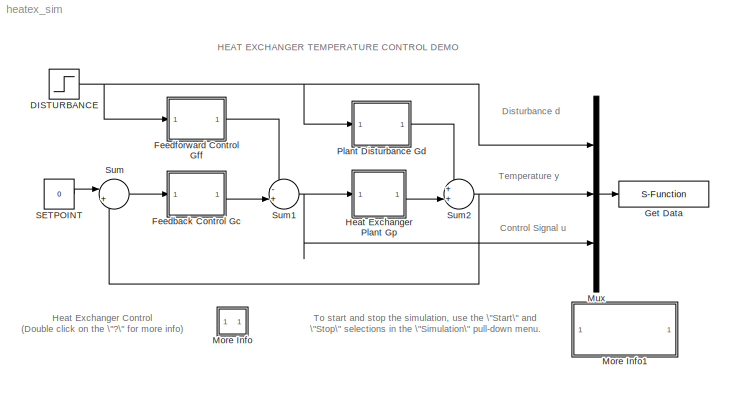
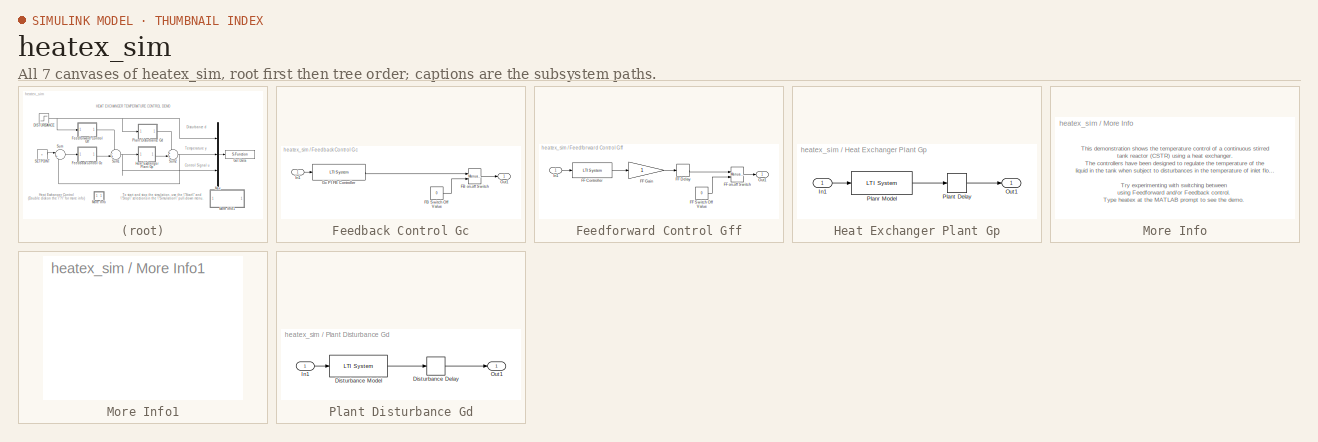
[diagram: thumbnail index - all 7 canvases of the model, root first then tree order]
MODEL heatex_sim
KIND model
CONFIG AbsTol = auto
CONFIG FixedStep = 2
CONFIG MaxStep = auto
CONFIG MinStep = auto
CONFIG RelTol = 1e-3
CONFIG Solver = ode4
CONFIG SolverMode = Auto
CONFIG StartFcn = heatex_clbk('Start')
CONFIG StartTime = 0.0
CONFIG StopFcn = heatex_clbk('Stop')
CONFIG StopTime = 200
BLOCK [Step] DISTURBANCE
  After = -1
  Before = 0
  SampleTime = 0
  Time = 20
  VectorParams1D = on
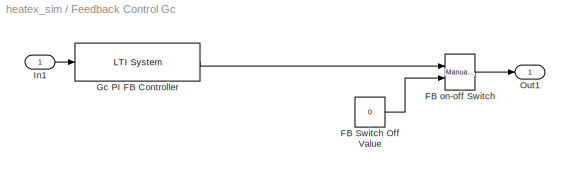
BLOCK [SubSystem] Feedback Control Gc
  Ports = [1, 1]
  RTWFcnNameOpts = Auto
  RTWFileNameOpts = Auto
  RTWSystemCode = Auto
  ShowPortLabels = on
  TreatAsAtomicUnit = off
BLOCK [Constant] Feedback Control Gc/FB Switch Off Value
  Value = 0
  VectorParams1D = on
BLOCK [Reference] Feedback Control Gc/FB on-off Switch  REF=simulink3/Nonlinear/Manual Switch
  Ports = [2, 1]
  SourceBlock = simulink3/Nonlinear/Manual Switch
  SourceType = Manual Switch
  action = 0
  sw = 1
BLOCK [Reference] Feedback Control Gc/Gc PI FB Controller  REF=cstblocks/LTI System
  IC = 0
  Ports = [1, 1]
  SourceBlock = cstblocks/LTI System
  SourceType = LTI Block
  sys = tf([30.31 1.23],[24.56 0])
BLOCK [Inport] Feedback Control Gc/In1
  Interpolate = on
  Port = 1
BLOCK [Outport] Feedback Control Gc/Out1
  InitialOutput = []
  OutputWhenDisabled = held
  Port = 1
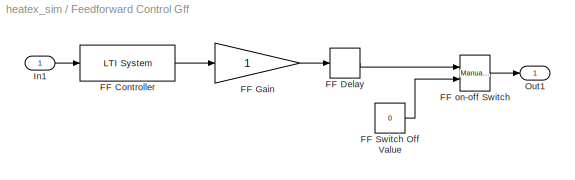
BLOCK [SubSystem] Feedforward Control Gff
  Ports = [1, 1]
  RTWFcnNameOpts = Auto
  RTWFileNameOpts = Auto
  RTWSystemCode = Auto
  ShowPortLabels = on
  TreatAsAtomicUnit = off
BLOCK [Reference] Feedforward Control Gff/FF Controller  REF=cstblocks/LTI System
  IC = 0
  Ports = [1, 1]
  SourceBlock = cstblocks/LTI System
  SourceType = LTI Block
  sys = tf([21.3 1],[25 1])
BLOCK [TransportDelay] Feedforward Control Gff/FF Delay
  BufferSize = 1024
  CloseFcn = disp('hello')
  DelayTime = 25.3
  InitialInput = 0
  PadeOrder = 0
BLOCK [Gain] Feedforward Control Gff/FF Gain
  CloseFcn = disp('hello')
  Gain = 1
  Multiplication = Element-wise(K.*u)
  SaturateOnIntegerOverflow = on
BLOCK [Constant] Feedforward Control Gff/FF Switch Off Value
  Value = 0
  VectorParams1D = on
BLOCK [Reference] Feedforward Control Gff/FF on-off Switch  REF=simulink3/Nonlinear/Manual Switch
  Ports = [2, 1]
  SourceBlock = simulink3/Nonlinear/Manual Switch
  SourceType = Manual Switch
  action = 0
  sw = 0
BLOCK [Inport] Feedforward Control Gff/In1
  Interpolate = on
  Port = 1
BLOCK [Outport] Feedforward Control Gff/Out1
  InitialOutput = []
  OutputWhenDisabled = held
  Port = 1
BLOCK [S-Function] Get Data
  FunctionName = heatex_getdata
  PortCounts = []
  Ports = [1]
  SFunctionModules = ''
BLOCK [SubSystem] Heat Exchanger Plant Gp
  Ports = [1, 1]
  RTWFcnNameOpts = Auto
  RTWFileNameOpts = Auto
  RTWSystemCode = Auto
  ShowPortLabels = on
  TreatAsAtomicUnit = off
BLOCK [Inport] Heat Exchanger Plant Gp/In1
  Interpolate = on
  Port = 1
BLOCK [Outport] Heat Exchanger Plant Gp/Out1
  InitialOutput = []
  OutputWhenDisabled = held
  Port = 1
BLOCK [Reference] Heat Exchanger Plant Gp/Planr Model  REF=cstblocks/LTI System
  IC = 0
  Ports = [1, 1]
  SourceBlock = cstblocks/LTI System
  SourceType = LTI Block
  sys = tf(1,[21.3 1])
BLOCK [TransportDelay] Heat Exchanger Plant Gp/Plant Delay
  BufferSize = 1024
  DelayTime = 14.7
  InitialInput = 0
  PadeOrder = 0
BLOCK [SubSystem] More Info
  MaskDisplay = disp('?')
  MaskIconFrame = on
  MaskIconOpaque = on
  MaskIconRotate = none
  MaskIconUnits = autoscale
  Ports = []
  RTWFcnNameOpts = Auto
  RTWFileNameOpts = Auto
  RTWSystemCode = Auto
  ShowPortLabels = on
  TreatAsAtomicUnit = off
BLOCK [SubSystem] More Info1
  MaskDisplay = disp('Double click\\nhere for\\nSimulink Help')
  MaskIconFrame = on
  MaskIconOpaque = on
  MaskIconRotate = none
  MaskIconUnits = autoscale
  OpenFcn = simcad(bdroot);
  Ports = []
  RTWFcnNameOpts = Auto
  RTWFileNameOpts = Auto
  RTWSystemCode = Auto
  ShowPortLabels = on
  TreatAsAtomicUnit = off
BLOCK [Mux] Mux
  DisplayOption = bar
  Inputs = 3
  Ports = [3, 1]
BLOCK [SubSystem] Plant Disturbance Gd
  Ports = [1, 1]
  RTWFcnNameOpts = Auto
  RTWFileNameOpts = Auto
  RTWSystemCode = Auto
  ShowPortLabels = on
  TreatAsAtomicUnit = off
BLOCK [TransportDelay] Plant Disturbance Gd/Disturbance Delay
  BufferSize = 1024
  DelayTime = 35
  InitialInput = 0
  PadeOrder = 0
BLOCK [Reference] Plant Disturbance Gd/Disturbance Model  REF=cstblocks/LTI System
  IC = 0
  Ports = [1, 1]
  SourceBlock = cstblocks/LTI System
  SourceType = LTI Block
  sys = tf(1,[25 1])
BLOCK [Inport] Plant Disturbance Gd/In1
  Interpolate = on
  Port = 1
BLOCK [Outport] Plant Disturbance Gd/Out1
  InitialOutput = []
  OutputWhenDisabled = held
  Port = 1
BLOCK [Constant] SETPOINT
  Value = 0
  VectorParams1D = on
BLOCK [Sum] Sum
  IconShape = round
  Inputs = |+-
  Ports = [2, 1]
  SaturateOnIntegerOverflow = on
BLOCK [Sum] Sum1
  IconShape = round
  Inputs = -+|
  Ports = [2, 1]
  SaturateOnIntegerOverflow = on
BLOCK [Sum] Sum2
  IconShape = round
  Inputs = ++|
  Ports = [2, 1]
  SaturateOnIntegerOverflow = on
NET DISTURBANCE:1 -> Feedforward Control Gff:1, Mux:1, Plant Disturbance Gd:1
LINE Feedback Control Gc/FB Switch Off Value:1 -> Feedback Control Gc/FB on-off Switch:2
LINE Feedback Control Gc/FB on-off Switch:1 -> Feedback Control Gc/Out1:1
LINE Feedback Control Gc/Gc PI FB Controller:1 -> Feedback Control Gc/FB on-off Switch:1
LINE Feedback Control Gc/In1:1 -> Feedback Control Gc/Gc PI FB Controller:1
LINE Feedback Control Gc:1 -> Sum1:2
LINE Feedforward Control Gff/FF Controller:1 -> Feedforward Control Gff/FF Gain:1
LINE Feedforward Control Gff/FF Delay:1 -> Feedforward Control Gff/FF on-off Switch:1
LINE Feedforward Control Gff/FF Gain:1 -> Feedforward Control Gff/FF Delay:1
LINE Feedforward Control Gff/FF Switch Off Value:1 -> Feedforward Control Gff/FF on-off Switch:2
LINE Feedforward Control Gff/FF on-off Switch:1 -> Feedforward Control Gff/Out1:1
LINE Feedforward Control Gff/In1:1 -> Feedforward Control Gff/FF Controller:1
LINE Feedforward Control Gff:1 -> Sum1:1
LINE Heat Exchanger Plant Gp/In1:1 -> Heat Exchanger Plant Gp/Planr Model:1
LINE Heat Exchanger Plant Gp/Planr Model:1 -> Heat Exchanger Plant Gp/Plant Delay:1
LINE Heat Exchanger Plant Gp/Plant Delay:1 -> Heat Exchanger Plant Gp/Out1:1
LINE Heat Exchanger Plant Gp:1 -> Sum2:2
LINE Mux:1 -> Get Data:1
LINE Plant Disturbance Gd/Disturbance Delay:1 -> Plant Disturbance Gd/Out1:1
LINE Plant Disturbance Gd/Disturbance Model:1 -> Plant Disturbance Gd/Disturbance Delay:1
LINE Plant Disturbance Gd/In1:1 -> Plant Disturbance Gd/Disturbance Model:1
LINE Plant Disturbance Gd:1 -> Sum2:1
LINE SETPOINT:1 -> Sum:1
NET Sum1:1 -> Heat Exchanger Plant Gp:1, Mux:3
NET Sum2:1 -> Mux:2, Sum:2
LINE Sum:1 -> Feedback Control Gc:1
note: NET lines group one-source signal fan-out (src -> all destinations, sorted); 1:1 wires keep LINE
